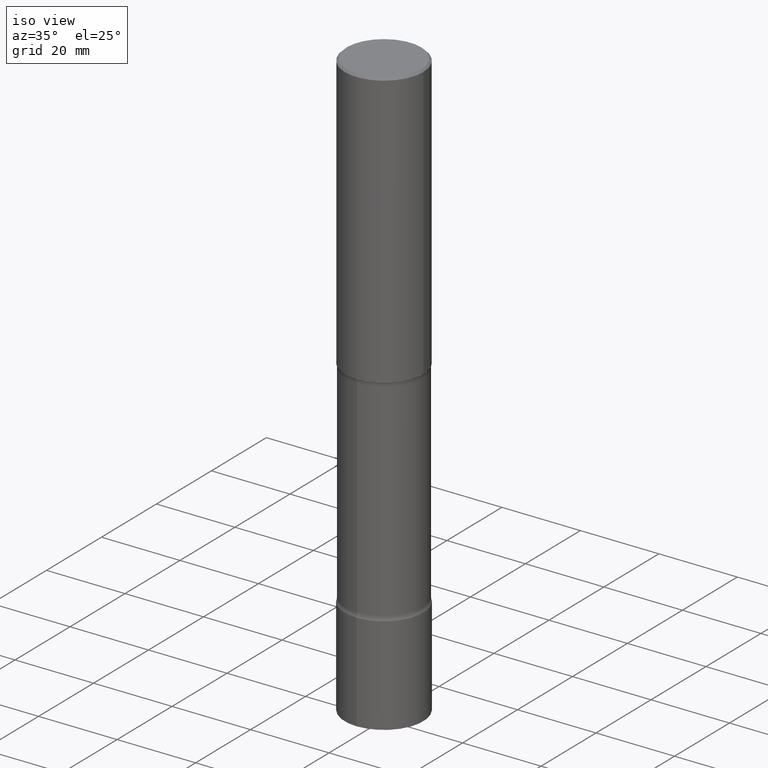
[diagram: clean part render]
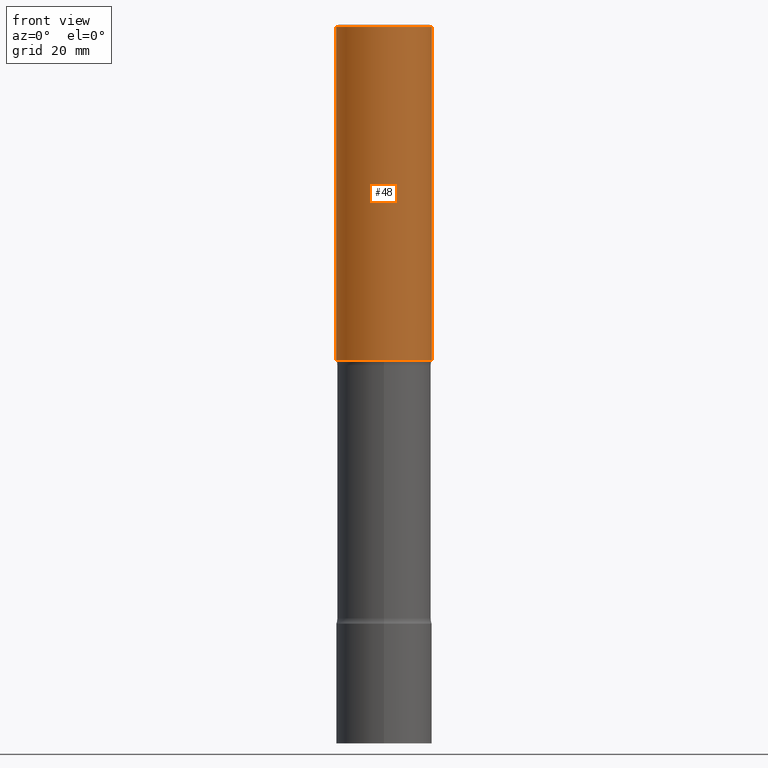
[diagram: tour spotlight — one face highlighted and labeled with its STEP entity id]
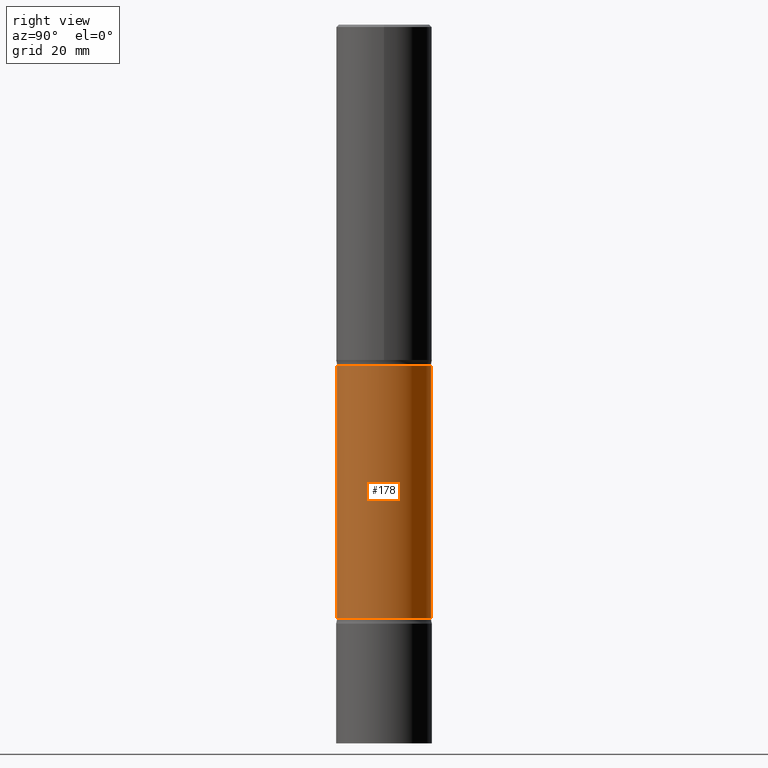
[diagram: tour spotlight — one face highlighted and labeled with its STEP entity id]
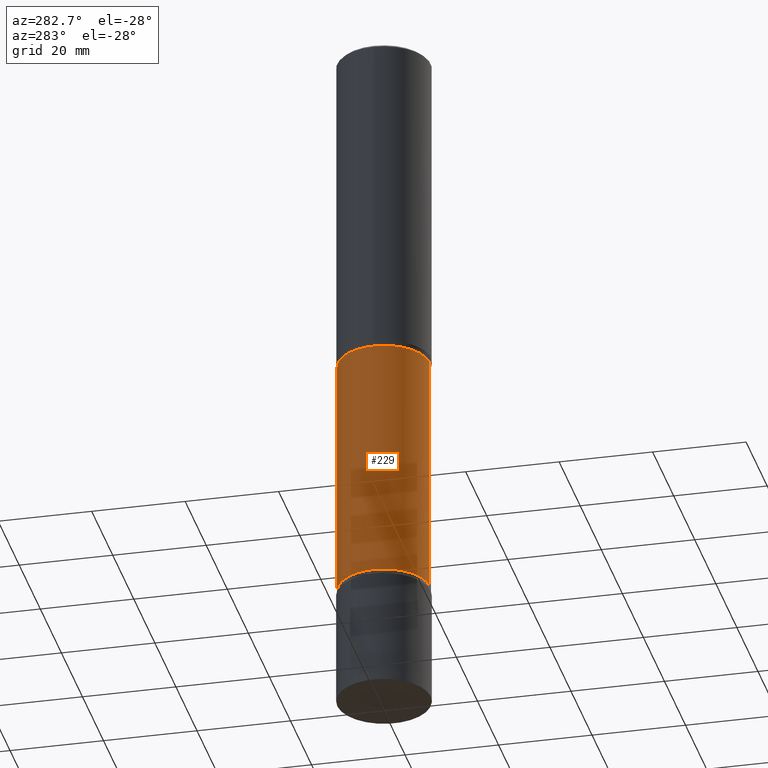
[diagram: tour spotlight — one face highlighted and labeled with its STEP entity id]
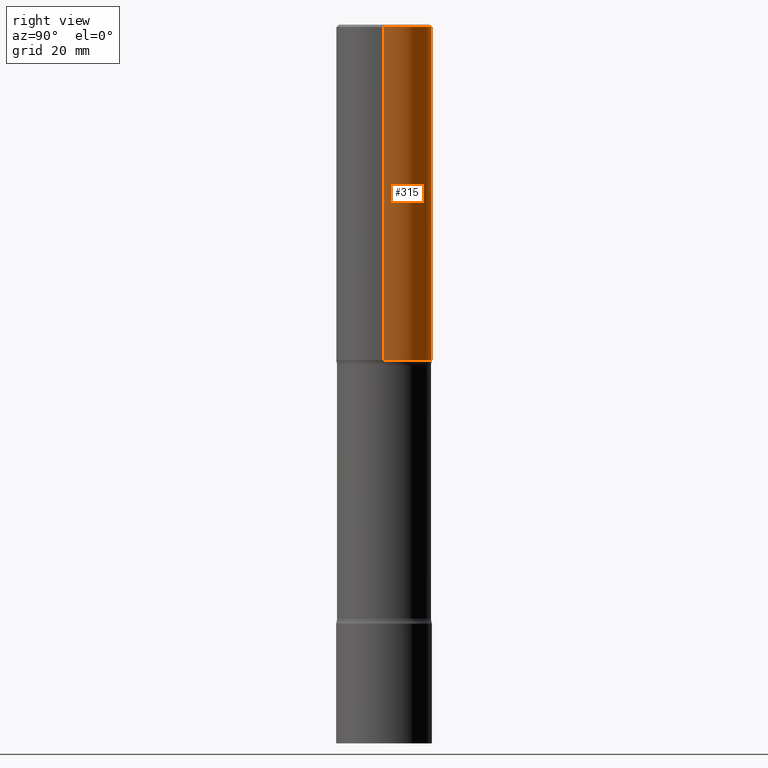
[diagram: tour spotlight — one face highlighted and labeled with its STEP entity id]
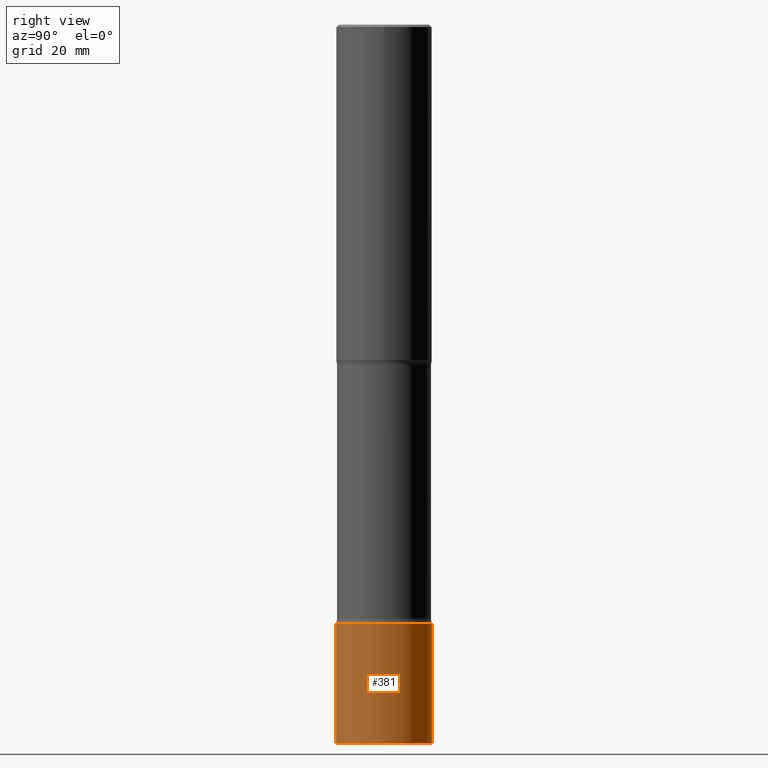
[diagram: tour spotlight — one face highlighted and labeled with its STEP entity id]
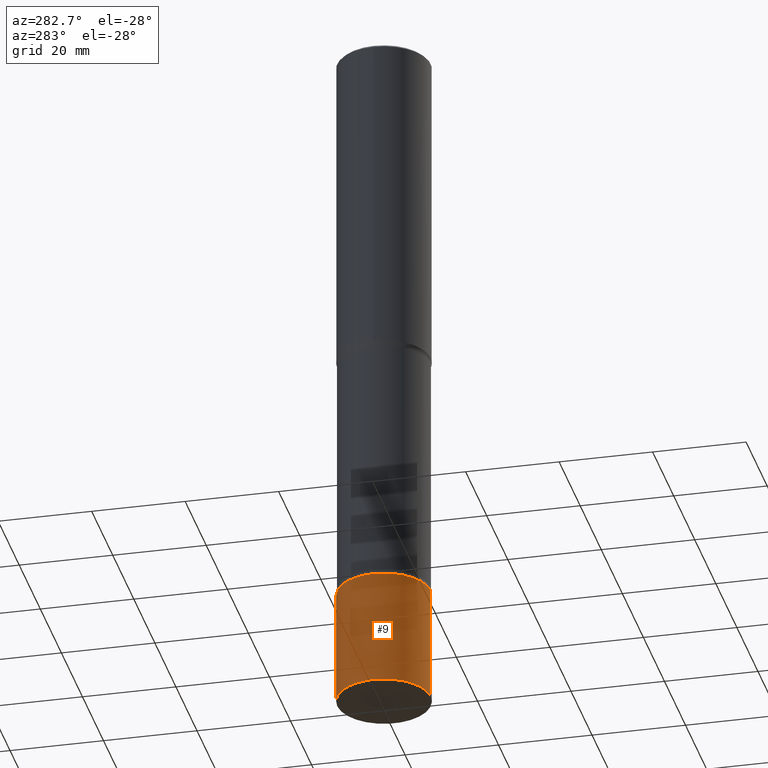
[diagram: tour spotlight — one face highlighted and labeled with its STEP entity id]
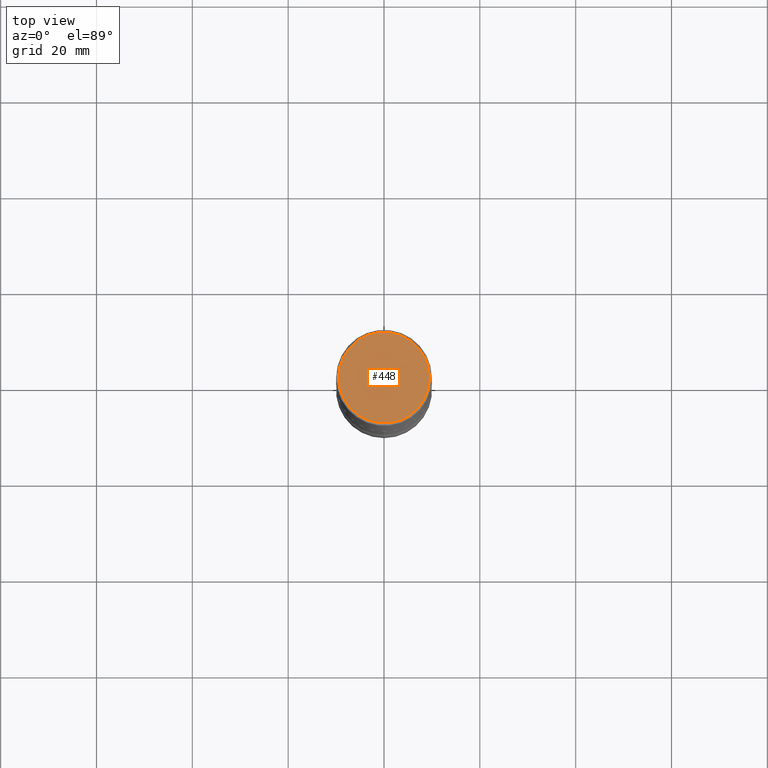
[diagram: tour spotlight — one face highlighted and labeled with its STEP entity id]
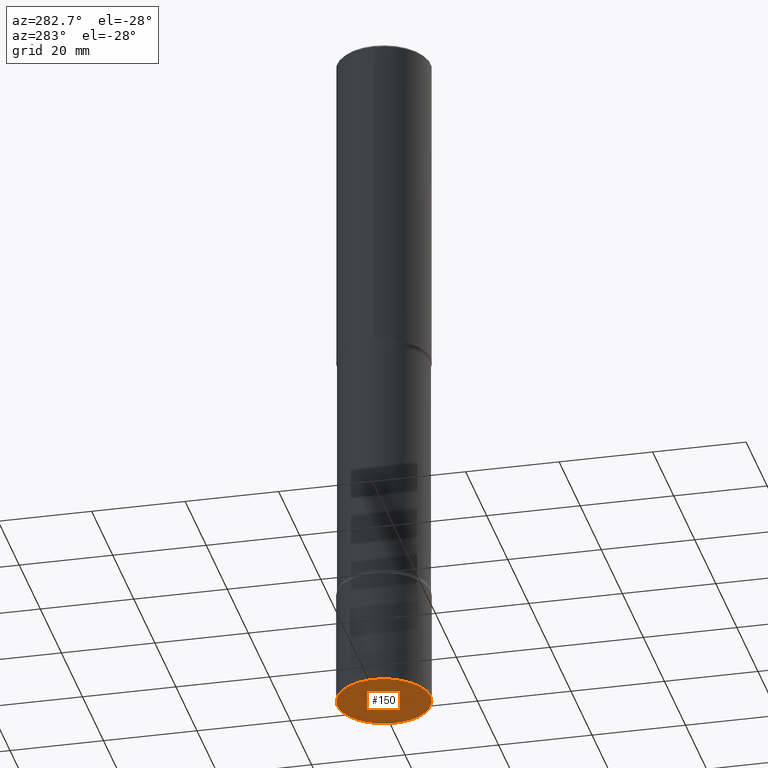
[diagram: tour spotlight — one face highlighted and labeled with its STEP entity id]
A machine part: a face-by-face anatomy tour. The part has 18 B-rep faces; the first image is the clean iso view, then the 8 largest visible faces are spotlighted one at a time (largest first), each with its STEP entity span.

Face 1 — front view, entity #48. In plain terms, the highlighted cylindrical surface (partial cylindrical patch) has radius 10 mm, axis along (-0, 0, 1).
Definition (entity closure, byte-faithful):
#15 = AXIS2_PLACEMENT_3D ( 'NONE', #384, #501, #77 ) ;
#48 = ADVANCED_FACE ( 'NONE', ( #497 ), #505, .T. ) ;
#54 = DIRECTION ( 'NONE',  ( -2.445468806185136597E-29, 3.491481338843145583E-15, 1.000000000000000000 ) ) ;
#73 = LINE ( 'NONE', #104, #429 ) ;
#77 = DIRECTION ( 'NONE',  ( 1.000000000000000000, -6.982962677686266711E-15, 4.876176775795935793E-29 ) ) ;
#85 = CARTESIAN_POINT ( 'NONE',  ( -0.3936999999999999389, 2.797406750687513998E-15, -1.936584745033356455E-29 ) ) ;
#104 = CARTESIAN_POINT ( 'NONE',  ( 0.3936999999999999389, -2.749192406205082822E-15, 1.919750796630859611E-29 ) ) ;
#113 = EDGE_CURVE ( 'NONE', #378, #132, #465, .T. ) ;
#122 = EDGE_CURVE ( 'NONE', #378, #430, #160, .T. ) ;
#129 = CARTESIAN_POINT ( 'NONE',  ( 0.3936999999999998279, -2.770807688499514156E-15, -0.02000000000000010103 ) ) ;
#132 = VERTEX_POINT ( 'NONE', #270 ) ;
#141 = ORIENTED_EDGE ( 'NONE', *, *, #122, .F. ) ;
#160 = LINE ( 'NONE', #85, #445 ) ;
#189 = ORIENTED_EDGE ( 'NONE', *, *, #113, .T. ) ;
#195 = VERTEX_POINT ( 'NONE', #129 ) ;
#220 = ORIENTED_EDGE ( 'NONE', *, *, #251, .F. ) ;
#228 = ORIENTED_EDGE ( 'NONE', *, *, #469, .T. ) ;
#233 = DIRECTION ( 'NONE',  ( -2.445468806185136877E-29, 3.491481338843145188E-15, 1.000000000000000000 ) ) ;
#251 = EDGE_CURVE ( 'NONE', #430, #195, #484, .T. ) ;
#270 = CARTESIAN_POINT ( 'NONE',  ( 0.3937000000000000499, -1.237136582792290445E-14, -2.755899999999998684 ) ) ;
#301 = CARTESIAN_POINT ( 'NONE',  ( -0.3936999999999998279, 2.679362779428218735E-15, -0.02000000000000010103 ) ) ;
#323 = DIRECTION ( 'NONE',  ( 1.000000000000000000, -6.982962677686266711E-15, 0.000000000000000000 ) ) ;
#359 = EDGE_LOOP ( 'NONE', ( #141, #189, #228, #220 ) ) ;
#378 = VERTEX_POINT ( 'NONE', #447 ) ;
#384 = CARTESIAN_POINT ( 'NONE',  ( 0.000000000000000000, 0.000000000000000000, 0.000000000000000000 ) ) ;
#390 = AXIS2_PLACEMENT_3D ( 'NONE', #456, #391, #426 ) ;
#391 = DIRECTION ( 'NONE',  ( -2.445468806185136597E-29, 3.491481338843145583E-15, 1.000000000000000000 ) ) ;
#402 = CARTESIAN_POINT ( 'NONE',  ( 4.890937612370298557E-31, -6.982962677686327354E-17, -0.02000000000000010103 ) ) ;
#426 = DIRECTION ( 'NONE',  ( 1.000000000000000000, -6.982962677686267499E-15, 0.000000000000000000 ) ) ;
#429 = VECTOR ( 'NONE', #233, 39.37007874015748143 ) ;
#430 = VERTEX_POINT ( 'NONE', #301 ) ;
#445 = VECTOR ( 'NONE', #457, 39.37007874015748143 ) ;
#447 = CARTESIAN_POINT ( 'NONE',  ( -0.3937000000000000499, -2.048594773559825902E-15, -2.755899999999998684 ) ) ;
#456 = CARTESIAN_POINT ( 'NONE',  ( 6.739467482965615990E-29, -9.622173421717821235E-15, -2.755899999999998684 ) ) ;
#457 = DIRECTION ( 'NONE',  ( -2.445468806185136877E-29, 3.491481338843145188E-15, 1.000000000000000000 ) ) ;
#465 = CIRCLE ( 'NONE', #390, 0.3937000000000000499 ) ;
#469 = EDGE_CURVE ( 'NONE', #132, #195, #73, .T. ) ;
#483 = AXIS2_PLACEMENT_3D ( 'NONE', #402, #54, #323 ) ;
#484 = CIRCLE ( 'NONE', #483, 0.3936999999999998279 ) ;
#497 = FACE_OUTER_BOUND ( 'NONE', #359, .T. ) ;
#501 = DIRECTION ( 'NONE',  ( -2.445468806185136597E-29, 3.491481338843145583E-15, 1.000000000000000000 ) ) ;
#505 = CYLINDRICAL_SURFACE ( 'NONE', #15, 0.3936999999999999389 ) ;

Face 2 — right view, entity #178. In plain terms, the highlighted cylindrical surface (partial cylindrical patch) has radius 9.8095 mm, axis along (0, -0, -1).
Definition (entity closure, byte-faithful):
#4 = CARTESIAN_POINT ( 'NONE',  ( 6.498622885665502383E-29, -1.026532838434027819E-14, -2.798546805273080640 ) ) ;
#45 = EDGE_CURVE ( 'NONE', #454, #265, #128, .T. ) ;
#49 = DIRECTION ( 'NONE',  ( 2.609347592550137180E-29, -3.256797589367199475E-15, -1.000000000000000000 ) ) ;
#90 = CARTESIAN_POINT ( 'NONE',  ( -2.675251194230891005E-15, -0.3862000000000175293, -4.878553194726920061 ) ) ;
#93 = VERTEX_POINT ( 'NONE', #90 ) ;
#121 = DIRECTION ( 'NONE',  ( 6.982962677686265922E-15, 1.000000000000000000, -2.829464519590119711E-15 ) ) ;
#124 = DIRECTION ( 'NONE',  ( 2.609347592550137180E-29, -3.256797589367199475E-15, -1.000000000000000000 ) ) ;
#128 = CIRCLE ( 'NONE', #179, 0.3862000000000003763 ) ;
#140 = CARTESIAN_POINT ( 'NONE',  ( 1.460574372449214127E-28, -2.038404605920362391E-14, -5.905499999999998195 ) ) ;
#158 = EDGE_CURVE ( 'NONE', #454, #293, #321, .T. ) ;
#175 = CARTESIAN_POINT ( 'NONE',  ( 1.192608255047578454E-28, -1.703948817938191787E-14, -4.878553194726920950 ) ) ;
#178 = ADVANCED_FACE ( 'NONE', ( #207 ), #400, .T. ) ;
#179 = AXIS2_PLACEMENT_3D ( 'NONE', #4, #347, #121 ) ;
#192 = ORIENTED_EDGE ( 'NONE', *, *, #271, .F. ) ;
#207 = FACE_OUTER_BOUND ( 'NONE', #303, .T. ) ;
#219 = DIRECTION ( 'NONE',  ( 2.609347592550137180E-29, -3.256797589367199475E-15, -1.000000000000000000 ) ) ;
#247 = CARTESIAN_POINT ( 'NONE',  ( 2.696820186122558805E-15, 0.3861999999999835009, -4.878553194726921838 ) ) ;
#259 = CARTESIAN_POINT ( 'NONE',  ( 2.696820186122503191E-15, 0.3861999999999901068, -2.798546805273081528 ) ) ;
#265 = VERTEX_POINT ( 'NONE', #466 ) ;
#271 = EDGE_CURVE ( 'NONE', #293, #93, #436, .T. ) ;
#286 = DIRECTION ( 'NONE',  ( 2.609347592550137180E-29, -3.256797589367199475E-15, -1.000000000000000000 ) ) ;
#288 = DIRECTION ( 'NONE',  ( 6.982962677686265922E-15, 1.000000000000000000, -2.829464519590119711E-15 ) ) ;
#293 = VERTEX_POINT ( 'NONE', #247 ) ;
#297 = EDGE_CURVE ( 'NONE', #265, #93, #471, .T. ) ;
#298 = AXIS2_PLACEMENT_3D ( 'NONE', #140, #286, #288 ) ;
#303 = EDGE_LOOP ( 'NONE', ( #363, #332, #192, #307 ) ) ;
#307 = ORIENTED_EDGE ( 'NONE', *, *, #158, .F. ) ;
#321 = LINE ( 'NONE', #463, #325 ) ;
#325 = VECTOR ( 'NONE', #124, 39.37007874015748143 ) ;
#332 = ORIENTED_EDGE ( 'NONE', *, *, #297, .T. ) ;
#335 = AXIS2_PLACEMENT_3D ( 'NONE', #175, #219, #472 ) ;
#347 = DIRECTION ( 'NONE',  ( 2.609347592550137180E-29, -3.256797589367199475E-15, -1.000000000000000000 ) ) ;
#363 = ORIENTED_EDGE ( 'NONE', *, *, #45, .T. ) ;
#371 = VECTOR ( 'NONE', #49, 39.37007874015748143 ) ;
#400 = CYLINDRICAL_SURFACE ( 'NONE', #298, 0.3862000000000003763 ) ;
#434 = CARTESIAN_POINT ( 'NONE',  ( -2.649524326739221477E-15, -0.3862000000000207489, -5.905499999999997307 ) ) ;
#436 = CIRCLE ( 'NONE', #335, 0.3862000000000004873 ) ;
#454 = VERTEX_POINT ( 'NONE', #259 ) ;
#463 = CARTESIAN_POINT ( 'NONE',  ( 2.696820186122584443E-15, 0.3861999999999800037, -5.905499999999999972 ) ) ;
#466 = CARTESIAN_POINT ( 'NONE',  ( -2.675251194230947803E-15, -0.3862000000000106459, -2.798546805273079308 ) ) ;
#471 = LINE ( 'NONE', #434, #371 ) ;
#472 = DIRECTION ( 'NONE',  ( 6.982962677686265922E-15, 1.000000000000000000, -2.829464519590118922E-15 ) ) ;

Face 3 — auxiliary view, entity #229. In plain terms, the highlighted cylindrical surface (partial cylindrical patch) has radius 9.8095 mm, axis along (0, -0, -1).
Definition (entity closure, byte-faithful):
#49 = DIRECTION ( 'NONE',  ( 2.609347592550137180E-29, -3.256797589367199475E-15, -1.000000000000000000 ) ) ;
#53 = EDGE_LOOP ( 'NONE', ( #365, #287, #330, #87 ) ) ;
#61 = EDGE_CURVE ( 'NONE', #265, #454, #409, .T. ) ;
#81 = DIRECTION ( 'NONE',  ( 6.982962677686265922E-15, 1.000000000000000000, -2.829464519590118922E-15 ) ) ;
#87 = ORIENTED_EDGE ( 'NONE', *, *, #135, .F. ) ;
#90 = CARTESIAN_POINT ( 'NONE',  ( -2.675251194230891005E-15, -0.3862000000000175293, -4.878553194726920061 ) ) ;
#93 = VERTEX_POINT ( 'NONE', #90 ) ;
#116 = CARTESIAN_POINT ( 'NONE',  ( 1.192608255047578454E-28, -1.703948817938191787E-14, -4.878553194726920950 ) ) ;
#124 = DIRECTION ( 'NONE',  ( 2.609347592550137180E-29, -3.256797589367199475E-15, -1.000000000000000000 ) ) ;
#135 = EDGE_CURVE ( 'NONE', #93, #293, #405, .T. ) ;
#137 = DIRECTION ( 'NONE',  ( 2.609347592550137180E-29, -3.256797589367199475E-15, -1.000000000000000000 ) ) ;
#158 = EDGE_CURVE ( 'NONE', #454, #293, #321, .T. ) ;
#181 = DIRECTION ( 'NONE',  ( 6.982962677686265922E-15, 1.000000000000000000, -2.829464519590119711E-15 ) ) ;
#186 = AXIS2_PLACEMENT_3D ( 'NONE', #116, #284, #81 ) ;
#196 = AXIS2_PLACEMENT_3D ( 'NONE', #329, #137, #181 ) ;
#206 = DIRECTION ( 'NONE',  ( 6.982962677686265922E-15, 1.000000000000000000, -2.829464519590119711E-15 ) ) ;
#223 = CYLINDRICAL_SURFACE ( 'NONE', #196, 0.3862000000000003763 ) ;
#229 = ADVANCED_FACE ( 'NONE', ( #435 ), #223, .T. ) ;
#240 = DIRECTION ( 'NONE',  ( 2.609347592550137180E-29, -3.256797589367199475E-15, -1.000000000000000000 ) ) ;
#247 = CARTESIAN_POINT ( 'NONE',  ( 2.696820186122558805E-15, 0.3861999999999835009, -4.878553194726921838 ) ) ;
#259 = CARTESIAN_POINT ( 'NONE',  ( 2.696820186122503191E-15, 0.3861999999999901068, -2.798546805273081528 ) ) ;
#265 = VERTEX_POINT ( 'NONE', #466 ) ;
#278 = CARTESIAN_POINT ( 'NONE',  ( 6.498622885665502383E-29, -1.026532838434027819E-14, -2.798546805273080640 ) ) ;
#284 = DIRECTION ( 'NONE',  ( 2.609347592550137180E-29, -3.256797589367199475E-15, -1.000000000000000000 ) ) ;
#287 = ORIENTED_EDGE ( 'NONE', *, *, #61, .T. ) ;
#293 = VERTEX_POINT ( 'NONE', #247 ) ;
#297 = EDGE_CURVE ( 'NONE', #265, #93, #471, .T. ) ;
#321 = LINE ( 'NONE', #463, #325 ) ;
#325 = VECTOR ( 'NONE', #124, 39.37007874015748143 ) ;
#329 = CARTESIAN_POINT ( 'NONE',  ( 1.460574372449214127E-28, -2.038404605920362391E-14, -5.905499999999998195 ) ) ;
#330 = ORIENTED_EDGE ( 'NONE', *, *, #158, .T. ) ;
#365 = ORIENTED_EDGE ( 'NONE', *, *, #297, .F. ) ;
#371 = VECTOR ( 'NONE', #49, 39.37007874015748143 ) ;
#388 = AXIS2_PLACEMENT_3D ( 'NONE', #278, #240, #206 ) ;
#405 = CIRCLE ( 'NONE', #186, 0.3862000000000004873 ) ;
#409 = CIRCLE ( 'NONE', #388, 0.3862000000000003763 ) ;
#434 = CARTESIAN_POINT ( 'NONE',  ( -2.649524326739221477E-15, -0.3862000000000207489, -5.905499999999997307 ) ) ;
#435 = FACE_OUTER_BOUND ( 'NONE', #53, .T. ) ;
#454 = VERTEX_POINT ( 'NONE', #259 ) ;
#463 = CARTESIAN_POINT ( 'NONE',  ( 2.696820186122584443E-15, 0.3861999999999800037, -5.905499999999999972 ) ) ;
#466 = CARTESIAN_POINT ( 'NONE',  ( -2.675251194230947803E-15, -0.3862000000000106459, -2.798546805273079308 ) ) ;
#471 = LINE ( 'NONE', #434, #371 ) ;

Face 4 — right view, entity #315. In plain terms, the highlighted cylindrical surface (partial cylindrical patch) has radius 10 mm, axis along (-0, 0, 1).
Definition (entity closure, byte-faithful):
#7 = ORIENTED_EDGE ( 'NONE', *, *, #209, .F. ) ;
#8 = DIRECTION ( 'NONE',  ( 1.000000000000000000, -6.982962677686266711E-15, 4.876176775795935793E-29 ) ) ;
#34 = DIRECTION ( 'NONE',  ( 1.000000000000000000, -6.982962677686267499E-15, 0.000000000000000000 ) ) ;
#44 = CARTESIAN_POINT ( 'NONE',  ( 6.739467482965615990E-29, -9.622173421717821235E-15, -2.755899999999998684 ) ) ;
#52 = CARTESIAN_POINT ( 'NONE',  ( 4.890937612370298557E-31, -6.982962677686327354E-17, -0.02000000000000010103 ) ) ;
#60 = EDGE_CURVE ( 'NONE', #132, #378, #108, .T. ) ;
#67 = ORIENTED_EDGE ( 'NONE', *, *, #469, .F. ) ;
#73 = LINE ( 'NONE', #104, #429 ) ;
#85 = CARTESIAN_POINT ( 'NONE',  ( -0.3936999999999999389, 2.797406750687513998E-15, -1.936584745033356455E-29 ) ) ;
#94 = CARTESIAN_POINT ( 'NONE',  ( 0.000000000000000000, 0.000000000000000000, 0.000000000000000000 ) ) ;
#104 = CARTESIAN_POINT ( 'NONE',  ( 0.3936999999999999389, -2.749192406205082822E-15, 1.919750796630859611E-29 ) ) ;
#108 = CIRCLE ( 'NONE', #452, 0.3937000000000000499 ) ;
#122 = EDGE_CURVE ( 'NONE', #378, #430, #160, .T. ) ;
#129 = CARTESIAN_POINT ( 'NONE',  ( 0.3936999999999998279, -2.770807688499514156E-15, -0.02000000000000010103 ) ) ;
#131 = FACE_OUTER_BOUND ( 'NONE', #177, .T. ) ;
#132 = VERTEX_POINT ( 'NONE', #270 ) ;
#160 = LINE ( 'NONE', #85, #445 ) ;
#177 = EDGE_LOOP ( 'NONE', ( #440, #326, #7, #67 ) ) ;
#195 = VERTEX_POINT ( 'NONE', #129 ) ;
#203 = AXIS2_PLACEMENT_3D ( 'NONE', #94, #360, #8 ) ;
#209 = EDGE_CURVE ( 'NONE', #195, #430, #340, .T. ) ;
#214 = CYLINDRICAL_SURFACE ( 'NONE', #203, 0.3936999999999999389 ) ;
#233 = DIRECTION ( 'NONE',  ( -2.445468806185136877E-29, 3.491481338843145188E-15, 1.000000000000000000 ) ) ;
#242 = AXIS2_PLACEMENT_3D ( 'NONE', #52, #294, #431 ) ;
#270 = CARTESIAN_POINT ( 'NONE',  ( 0.3937000000000000499, -1.237136582792290445E-14, -2.755899999999998684 ) ) ;
#274 = DIRECTION ( 'NONE',  ( -2.445468806185136597E-29, 3.491481338843145583E-15, 1.000000000000000000 ) ) ;
#294 = DIRECTION ( 'NONE',  ( -2.445468806185136597E-29, 3.491481338843145583E-15, 1.000000000000000000 ) ) ;
#301 = CARTESIAN_POINT ( 'NONE',  ( -0.3936999999999998279, 2.679362779428218735E-15, -0.02000000000000010103 ) ) ;
#315 = ADVANCED_FACE ( 'NONE', ( #131 ), #214, .T. ) ;
#326 = ORIENTED_EDGE ( 'NONE', *, *, #122, .T. ) ;
#340 = CIRCLE ( 'NONE', #242, 0.3936999999999998279 ) ;
#360 = DIRECTION ( 'NONE',  ( -2.445468806185136597E-29, 3.491481338843145583E-15, 1.000000000000000000 ) ) ;
#378 = VERTEX_POINT ( 'NONE', #447 ) ;
#429 = VECTOR ( 'NONE', #233, 39.37007874015748143 ) ;
#430 = VERTEX_POINT ( 'NONE', #301 ) ;
#431 = DIRECTION ( 'NONE',  ( 1.000000000000000000, -6.982962677686266711E-15, 0.000000000000000000 ) ) ;
#440 = ORIENTED_EDGE ( 'NONE', *, *, #60, .T. ) ;
#445 = VECTOR ( 'NONE', #457, 39.37007874015748143 ) ;
#447 = CARTESIAN_POINT ( 'NONE',  ( -0.3937000000000000499, -2.048594773559825902E-15, -2.755899999999998684 ) ) ;
#452 = AXIS2_PLACEMENT_3D ( 'NONE', #44, #274, #34 ) ;
#457 = DIRECTION ( 'NONE',  ( -2.445468806185136877E-29, 3.491481338843145188E-15, 1.000000000000000000 ) ) ;
#469 = EDGE_CURVE ( 'NONE', #132, #195, #73, .T. ) ;

Face 5 — right view, entity #381. In plain terms, the highlighted cylindrical surface (partial cylindrical patch) has radius 10 mm, axis along (-0, 0, 1).
Definition (entity closure, byte-faithful):
#5 = CIRCLE ( 'NONE', #21, 0.3937000000000000499 ) ;
#19 = CARTESIAN_POINT ( 'NONE',  ( -2.749192406204938461E-15, -0.3937000000000206446, -5.905499999999998195 ) ) ;
#20 = DIRECTION ( 'NONE',  ( -2.446021882700367248E-29, 3.490689301794175043E-15, 1.000000000000000000 ) ) ;
#21 = AXIS2_PLACEMENT_3D ( 'NONE', #327, #396, #398 ) ;
#43 = VERTEX_POINT ( 'NONE', #200 ) ;
#46 = DIRECTION ( 'NONE',  ( -2.446021882700367248E-29, 3.490689301794175043E-15, 1.000000000000000000 ) ) ;
#63 = CARTESIAN_POINT ( 'NONE',  ( 0.000000000000000000, 0.000000000000000000, 0.000000000000000000 ) ) ;
#74 = EDGE_LOOP ( 'NONE', ( #343, #109, #246, #282 ) ) ;
#97 = LINE ( 'NONE', #331, #145 ) ;
#99 = CARTESIAN_POINT ( 'NONE',  ( -2.749192406205082822E-15, -0.3937000000000000499, 1.374284378116366922E-15 ) ) ;
#109 = ORIENTED_EDGE ( 'NONE', *, *, #204, .T. ) ;
#118 = AXIS2_PLACEMENT_3D ( 'NONE', #260, #20, #187 ) ;
#136 = CIRCLE ( 'NONE', #118, 0.3937000000000000499 ) ;
#145 = VECTOR ( 'NONE', #479, 39.37007874015748143 ) ;
#176 = VERTEX_POINT ( 'NONE', #428 ) ;
#185 = EDGE_CURVE ( 'NONE', #480, #43, #439, .T. ) ;
#187 = DIRECTION ( 'NONE',  ( -6.982962677686265133E-15, -1.000000000000000000, 2.775563112689116301E-15 ) ) ;
#188 = FACE_OUTER_BOUND ( 'NONE', #74, .T. ) ;
#190 = EDGE_CURVE ( 'NONE', #43, #437, #5, .T. ) ;
#200 = CARTESIAN_POINT ( 'NONE',  ( -2.749192406204962521E-15, -0.3937000000000172584, -4.921199999999998909 ) ) ;
#204 = EDGE_CURVE ( 'NONE', #176, #437, #97, .T. ) ;
#225 = DIRECTION ( 'NONE',  ( -6.982962677686265133E-15, -1.000000000000000000, 3.490689301794175043E-15 ) ) ;
#226 = VECTOR ( 'NONE', #46, 39.37007874015748143 ) ;
#246 = ORIENTED_EDGE ( 'NONE', *, *, #190, .F. ) ;
#260 = CARTESIAN_POINT ( 'NONE',  ( 1.444498222828701808E-28, -2.061426567174549713E-14, -5.905499999999999972 ) ) ;
#263 = CYLINDRICAL_SURFACE ( 'NONE', #491, 0.3937000000000000499 ) ;
#282 = ORIENTED_EDGE ( 'NONE', *, *, #185, .F. ) ;
#296 = CARTESIAN_POINT ( 'NONE',  ( 2.797406750687659148E-15, 0.3936999999999828970, -4.921200000000002461 ) ) ;
#327 = CARTESIAN_POINT ( 'NONE',  ( 1.203736288914504850E-28, -1.717838019198949661E-14, -4.921200000000000685 ) ) ;
#331 = CARTESIAN_POINT ( 'NONE',  ( 2.797406750687513998E-15, 0.3937000000000000499, -1.374284378116366922E-15 ) ) ;
#333 = DIRECTION ( 'NONE',  ( -2.446021882700367248E-29, 3.490689301794175043E-15, 1.000000000000000000 ) ) ;
#343 = ORIENTED_EDGE ( 'NONE', *, *, #494, .T. ) ;
#381 = ADVANCED_FACE ( 'NONE', ( #188 ), #263, .T. ) ;
#396 = DIRECTION ( 'NONE',  ( -2.446021882700367248E-29, 3.490689301794175043E-15, 1.000000000000000000 ) ) ;
#398 = DIRECTION ( 'NONE',  ( -6.982962677686265133E-15, -1.000000000000000000, 4.163344669033674845E-15 ) ) ;
#428 = CARTESIAN_POINT ( 'NONE',  ( 2.797406750687646526E-15, 0.3936999999999793998, -5.905500000000000860 ) ) ;
#437 = VERTEX_POINT ( 'NONE', #296 ) ;
#439 = LINE ( 'NONE', #99, #226 ) ;
#479 = DIRECTION ( 'NONE',  ( -2.446021882700367248E-29, 3.490689301794175043E-15, 1.000000000000000000 ) ) ;
#480 = VERTEX_POINT ( 'NONE', #19 ) ;
#491 = AXIS2_PLACEMENT_3D ( 'NONE', #63, #333, #225 ) ;
#494 = EDGE_CURVE ( 'NONE', #480, #176, #136, .T. ) ;

Face 6 — auxiliary view, entity #9. In plain terms, the highlighted cylindrical surface (partial cylindrical patch) has radius 10 mm, axis along (-0, 0, 1).
Definition (entity closure, byte-faithful):
#9 = ADVANCED_FACE ( 'NONE', ( #100 ), #490, .T. ) ;
#10 = ORIENTED_EDGE ( 'NONE', *, *, #204, .F. ) ;
#13 = CARTESIAN_POINT ( 'NONE',  ( 1.444498222828701808E-28, -2.061426567174549713E-14, -5.905499999999999972 ) ) ;
#19 = CARTESIAN_POINT ( 'NONE',  ( -2.749192406204938461E-15, -0.3937000000000206446, -5.905499999999998195 ) ) ;
#43 = VERTEX_POINT ( 'NONE', #200 ) ;
#46 = DIRECTION ( 'NONE',  ( -2.446021882700367248E-29, 3.490689301794175043E-15, 1.000000000000000000 ) ) ;
#59 = AXIS2_PLACEMENT_3D ( 'NONE', #255, #182, #295 ) ;
#97 = LINE ( 'NONE', #331, #145 ) ;
#99 = CARTESIAN_POINT ( 'NONE',  ( -2.749192406205082822E-15, -0.3937000000000000499, 1.374284378116366922E-15 ) ) ;
#100 = FACE_OUTER_BOUND ( 'NONE', #167, .T. ) ;
#105 = EDGE_CURVE ( 'NONE', #437, #43, #379, .T. ) ;
#145 = VECTOR ( 'NONE', #479, 39.37007874015748143 ) ;
#167 = EDGE_LOOP ( 'NONE', ( #10, #208, #403, #487 ) ) ;
#172 = AXIS2_PLACEMENT_3D ( 'NONE', #317, #423, #245 ) ;
#176 = VERTEX_POINT ( 'NONE', #428 ) ;
#182 = DIRECTION ( 'NONE',  ( -2.446021882700367248E-29, 3.490689301794175043E-15, 1.000000000000000000 ) ) ;
#185 = EDGE_CURVE ( 'NONE', #480, #43, #439, .T. ) ;
#200 = CARTESIAN_POINT ( 'NONE',  ( -2.749192406204962521E-15, -0.3937000000000172584, -4.921199999999998909 ) ) ;
#204 = EDGE_CURVE ( 'NONE', #176, #437, #97, .T. ) ;
#208 = ORIENTED_EDGE ( 'NONE', *, *, #235, .T. ) ;
#226 = VECTOR ( 'NONE', #46, 39.37007874015748143 ) ;
#235 = EDGE_CURVE ( 'NONE', #176, #480, #414, .T. ) ;
#245 = DIRECTION ( 'NONE',  ( -6.982962677686265133E-15, -1.000000000000000000, 4.163344669033674845E-15 ) ) ;
#255 = CARTESIAN_POINT ( 'NONE',  ( 0.000000000000000000, 0.000000000000000000, 0.000000000000000000 ) ) ;
#295 = DIRECTION ( 'NONE',  ( -6.982962677686265133E-15, -1.000000000000000000, 3.490689301794175043E-15 ) ) ;
#296 = CARTESIAN_POINT ( 'NONE',  ( 2.797406750687659148E-15, 0.3936999999999828970, -4.921200000000002461 ) ) ;
#317 = CARTESIAN_POINT ( 'NONE',  ( 1.203736288914504850E-28, -1.717838019198949661E-14, -4.921200000000000685 ) ) ;
#331 = CARTESIAN_POINT ( 'NONE',  ( 2.797406750687513998E-15, 0.3937000000000000499, -1.374284378116366922E-15 ) ) ;
#364 = DIRECTION ( 'NONE',  ( -2.446021882700367248E-29, 3.490689301794175043E-15, 1.000000000000000000 ) ) ;
#379 = CIRCLE ( 'NONE', #172, 0.3937000000000000499 ) ;
#403 = ORIENTED_EDGE ( 'NONE', *, *, #185, .T. ) ;
#404 = DIRECTION ( 'NONE',  ( -6.982962677686265133E-15, -1.000000000000000000, 2.775563112689116301E-15 ) ) ;
#414 = CIRCLE ( 'NONE', #420, 0.3937000000000000499 ) ;
#420 = AXIS2_PLACEMENT_3D ( 'NONE', #13, #364, #404 ) ;
#423 = DIRECTION ( 'NONE',  ( -2.446021882700367248E-29, 3.490689301794175043E-15, 1.000000000000000000 ) ) ;
#428 = CARTESIAN_POINT ( 'NONE',  ( 2.797406750687646526E-15, 0.3936999999999793998, -5.905500000000000860 ) ) ;
#437 = VERTEX_POINT ( 'NONE', #296 ) ;
#439 = LINE ( 'NONE', #99, #226 ) ;
#479 = DIRECTION ( 'NONE',  ( -2.446021882700367248E-29, 3.490689301794175043E-15, 1.000000000000000000 ) ) ;
#480 = VERTEX_POINT ( 'NONE', #19 ) ;
#487 = ORIENTED_EDGE ( 'NONE', *, *, #105, .F. ) ;
#490 = CYLINDRICAL_SURFACE ( 'NONE', #59, 0.3937000000000000499 ) ;

Face 7 — top view, entity #448. In plain terms, the highlighted planar face has unit normal (0, -0, -1).
Definition (entity closure, byte-faithful):
#14 = AXIS2_PLACEMENT_3D ( 'NONE', #227, #375, #106 ) ;
#51 = ORIENTED_EDGE ( 'NONE', *, *, #393, .T. ) ;
#106 = DIRECTION ( 'NONE',  ( -1.000000000000000000, 6.982962677686265922E-15, -4.876176775795935793E-29 ) ) ;
#142 = DIRECTION ( 'NONE',  ( 1.000000000000000000, -6.982962677686266711E-15, 4.876212485538978481E-29 ) ) ;
#147 = CARTESIAN_POINT ( 'NONE',  ( -2.087702828670439639E-46, 2.980686340760894400E-32, 8.537024980200822558E-18 ) ) ;
#151 = VERTEX_POINT ( 'NONE', #462 ) ;
#222 = CIRCLE ( 'NONE', #372, 0.3736999999999997546 ) ;
#227 = CARTESIAN_POINT ( 'NONE',  ( 2.609533152651355831E-15, 0.3736999999999997546, -1.300498063835582419E-15 ) ) ;
#291 = AXIS2_PLACEMENT_3D ( 'NONE', #147, #486, #446 ) ;
#306 = CIRCLE ( 'NONE', #291, 0.3736999999999997546 ) ;
#334 = FACE_OUTER_BOUND ( 'NONE', #495, .T. ) ;
#336 = CARTESIAN_POINT ( 'NONE',  ( 0.3736999999999997546, -2.667287895133366781E-15, 8.537024980219274507E-18 ) ) ;
#339 = VERTEX_POINT ( 'NONE', #336 ) ;
#372 = AXIS2_PLACEMENT_3D ( 'NONE', #415, #373, #142 ) ;
#373 = DIRECTION ( 'NONE',  ( -2.445468806185136597E-29, 3.491481338843145583E-15, 1.000000000000000000 ) ) ;
#375 = DIRECTION ( 'NONE',  ( 2.438088387897960049E-29, -3.491481338843145188E-15, -1.000000000000000000 ) ) ;
#393 = EDGE_CURVE ( 'NONE', #339, #151, #222, .T. ) ;
#413 = EDGE_CURVE ( 'NONE', #151, #339, #306, .T. ) ;
#415 = CARTESIAN_POINT ( 'NONE',  ( -2.087702828670439639E-46, 2.980686340760894400E-32, 8.537024980200822558E-18 ) ) ;
#446 = DIRECTION ( 'NONE',  ( 1.000000000000000000, -6.982962677686266711E-15, 4.876212485538978481E-29 ) ) ;
#448 = ADVANCED_FACE ( 'NONE', ( #334 ), #482, .F. ) ;
#462 = CARTESIAN_POINT ( 'NONE',  ( -0.3736999999999997546, 2.644447966039787480E-15, 8.537024980182450727E-18 ) ) ;
#464 = ORIENTED_EDGE ( 'NONE', *, *, #413, .T. ) ;
#482 = PLANE ( 'NONE',  #14 ) ;
#486 = DIRECTION ( 'NONE',  ( -2.445468806185136597E-29, 3.491481338843145583E-15, 1.000000000000000000 ) ) ;
#495 = EDGE_LOOP ( 'NONE', ( #464, #51 ) ) ;

Face 8 — auxiliary view, entity #150. In plain terms, the highlighted planar face has unit normal (0, -0, -1).
Definition (entity closure, byte-faithful):
#13 = CARTESIAN_POINT ( 'NONE',  ( 1.444498222828701808E-28, -2.061426567174549713E-14, -5.905499999999999972 ) ) ;
#19 = CARTESIAN_POINT ( 'NONE',  ( -2.749192406204938461E-15, -0.3937000000000206446, -5.905499999999998195 ) ) ;
#20 = DIRECTION ( 'NONE',  ( -2.446021882700367248E-29, 3.490689301794175043E-15, 1.000000000000000000 ) ) ;
#83 = PLANE ( 'NONE',  #285 ) ;
#112 = EDGE_LOOP ( 'NONE', ( #257, #470 ) ) ;
#118 = AXIS2_PLACEMENT_3D ( 'NONE', #260, #20, #187 ) ;
#136 = CIRCLE ( 'NONE', #118, 0.3937000000000000499 ) ;
#150 = ADVANCED_FACE ( 'NONE', ( #460 ), #83, .T. ) ;
#166 = DIRECTION ( 'NONE',  ( 6.982962677686265922E-15, 1.000000000000000000, -3.490689301794175043E-15 ) ) ;
#176 = VERTEX_POINT ( 'NONE', #428 ) ;
#187 = DIRECTION ( 'NONE',  ( -6.982962677686265133E-15, -1.000000000000000000, 2.775563112689116301E-15 ) ) ;
#202 = CARTESIAN_POINT ( 'NONE',  ( 2.995880486404522256E-29, -3.701003100852377364E-14, -5.905499999999998195 ) ) ;
#235 = EDGE_CURVE ( 'NONE', #176, #480, #414, .T. ) ;
#257 = ORIENTED_EDGE ( 'NONE', *, *, #494, .F. ) ;
#260 = CARTESIAN_POINT ( 'NONE',  ( 1.444498222828701808E-28, -2.061426567174549713E-14, -5.905499999999999972 ) ) ;
#285 = AXIS2_PLACEMENT_3D ( 'NONE', #202, #349, #166 ) ;
#349 = DIRECTION ( 'NONE',  ( 2.446021882700366968E-29, -3.490689301794175043E-15, -1.000000000000000000 ) ) ;
#364 = DIRECTION ( 'NONE',  ( -2.446021882700367248E-29, 3.490689301794175043E-15, 1.000000000000000000 ) ) ;
#404 = DIRECTION ( 'NONE',  ( -6.982962677686265133E-15, -1.000000000000000000, 2.775563112689116301E-15 ) ) ;
#414 = CIRCLE ( 'NONE', #420, 0.3937000000000000499 ) ;
#420 = AXIS2_PLACEMENT_3D ( 'NONE', #13, #364, #404 ) ;
#428 = CARTESIAN_POINT ( 'NONE',  ( 2.797406750687646526E-15, 0.3936999999999793998, -5.905500000000000860 ) ) ;
#460 = FACE_OUTER_BOUND ( 'NONE', #112, .T. ) ;
#470 = ORIENTED_EDGE ( 'NONE', *, *, #235, .F. ) ;
#480 = VERTEX_POINT ( 'NONE', #19 ) ;
#494 = EDGE_CURVE ( 'NONE', #480, #176, #136, .T. ) ;